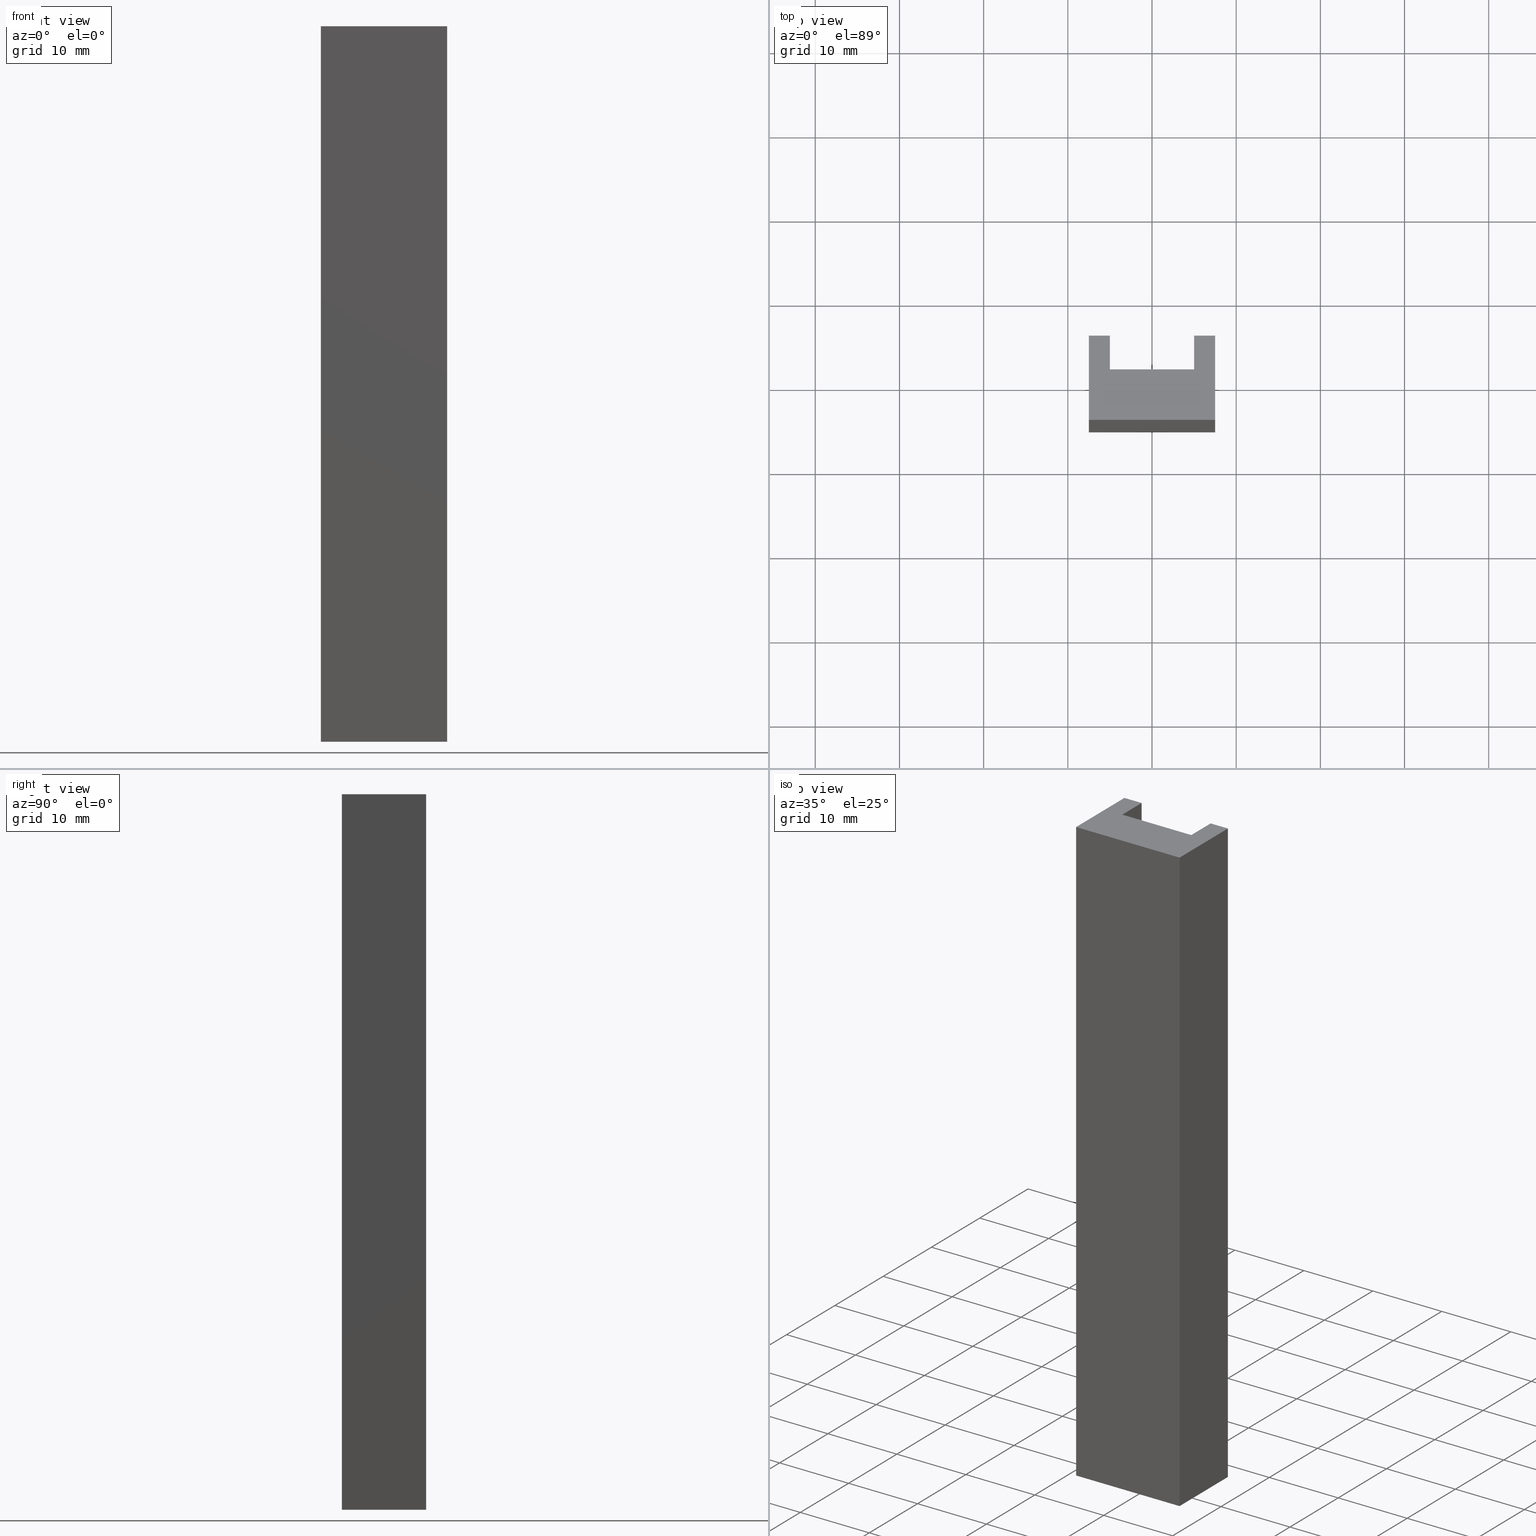
[diagram: canonical four-view strip — front | top / right | iso, engineering-drawing reading convention]
A machine part, canonical four-view strip (front | top / right | iso — engineering-drawing reading convention). The complete STEP part file that produces these views, byte-faithful:
ISO-10303-21;
HEADER;
/* Generated by software containing ST-Developer
 * from STEP Tools, Inc. (www.steptools.com) 
 */

FILE_DESCRIPTION(
/* description */ (''),
/* implementation_level */ '2;1');

FILE_NAME(
/* name */ 'E_3_01_10_17_00_WKZ-0214.stp',
/* time_stamp */ '2025-11-24T13:09:19+01:00',
/* author */ ('d.fischer'),
/* organization */ (''),
/* preprocessor_version */ 'ST-DEVELOPER v20',
/* originating_system */ 'Autodesk Inventor 2025',
/* authorisation */ '');

FILE_SCHEMA (('AUTOMOTIVE_DESIGN { 1 0 10303 214 3 1 1 }'));
ENDSEC;

DATA;
#10=MECHANICAL_DESIGN_GEOMETRIC_PRESENTATION_REPRESENTATION('',(#14,#15),
#325);
#11=SHAPE_REPRESENTATION_RELATIONSHIP('SRR','None',#332,#12);
#12=ADVANCED_BREP_SHAPE_REPRESENTATION('',(#13),#324);
#13=MANIFOLD_SOLID_BREP('Volumenk\X\F6rper1',#192);
#14=STYLED_ITEM('',(#342),#190);
#15=STYLED_ITEM('',(#341),#13);
#16=FACE_OUTER_BOUND('',#26,.T.);
#17=FACE_OUTER_BOUND('',#27,.T.);
#18=FACE_OUTER_BOUND('',#28,.T.);
#19=FACE_OUTER_BOUND('',#29,.T.);
#20=FACE_OUTER_BOUND('',#30,.T.);
#21=FACE_OUTER_BOUND('',#31,.T.);
#22=FACE_OUTER_BOUND('',#32,.T.);
#23=FACE_OUTER_BOUND('',#33,.T.);
#24=FACE_OUTER_BOUND('',#34,.T.);
#25=FACE_OUTER_BOUND('',#35,.T.);
#26=EDGE_LOOP('',(#124,#125,#126,#127,#128,#129,#130,#131));
#27=EDGE_LOOP('',(#132,#133,#134,#135));
#28=EDGE_LOOP('',(#136,#137,#138,#139));
#29=EDGE_LOOP('',(#140,#141,#142,#143));
#30=EDGE_LOOP('',(#144,#145,#146,#147));
#31=EDGE_LOOP('',(#148,#149,#150,#151));
#32=EDGE_LOOP('',(#152,#153,#154,#155));
#33=EDGE_LOOP('',(#156,#157,#158,#159));
#34=EDGE_LOOP('',(#160,#161,#162,#163));
#35=EDGE_LOOP('',(#164,#165,#166,#167,#168,#169,#170,#171));
#36=LINE('',#275,#60);
#37=LINE('',#277,#61);
#38=LINE('',#279,#62);
#39=LINE('',#281,#63);
#40=LINE('',#283,#64);
#41=LINE('',#285,#65);
#42=LINE('',#287,#66);
#43=LINE('',#288,#67);
#44=LINE('',#292,#68);
#45=LINE('',#293,#69);
#46=LINE('',#294,#70);
#47=LINE('',#297,#71);
#48=LINE('',#298,#72);
#49=LINE('',#301,#73);
#50=LINE('',#302,#74);
#51=LINE('',#305,#75);
#52=LINE('',#306,#76);
#53=LINE('',#309,#77);
#54=LINE('',#310,#78);
#55=LINE('',#313,#79);
#56=LINE('',#314,#80);
#57=LINE('',#317,#81);
#58=LINE('',#318,#82);
#59=LINE('',#320,#83);
#60=VECTOR('',#229,10.);
#61=VECTOR('',#230,10.);
#62=VECTOR('',#231,10.);
#63=VECTOR('',#232,10.);
#64=VECTOR('',#233,10.);
#65=VECTOR('',#234,10.);
#66=VECTOR('',#235,10.);
#67=VECTOR('',#236,10.);
#68=VECTOR('',#239,10.);
#69=VECTOR('',#240,10.);
#70=VECTOR('',#241,10.);
#71=VECTOR('',#244,10.);
#72=VECTOR('',#245,10.);
#73=VECTOR('',#248,10.);
#74=VECTOR('',#249,10.);
#75=VECTOR('',#252,10.);
#76=VECTOR('',#253,10.);
#77=VECTOR('',#256,10.);
#78=VECTOR('',#257,10.);
#79=VECTOR('',#260,10.);
#80=VECTOR('',#261,10.);
#81=VECTOR('',#264,10.);
#82=VECTOR('',#265,10.);
#83=VECTOR('',#268,10.);
#84=VERTEX_POINT('',#273);
#85=VERTEX_POINT('',#274);
#86=VERTEX_POINT('',#276);
#87=VERTEX_POINT('',#278);
#88=VERTEX_POINT('',#280);
#89=VERTEX_POINT('',#282);
#90=VERTEX_POINT('',#284);
#91=VERTEX_POINT('',#286);
#92=VERTEX_POINT('',#290);
#93=VERTEX_POINT('',#291);
#94=VERTEX_POINT('',#296);
#95=VERTEX_POINT('',#300);
#96=VERTEX_POINT('',#304);
#97=VERTEX_POINT('',#308);
#98=VERTEX_POINT('',#312);
#99=VERTEX_POINT('',#316);
#100=EDGE_CURVE('',#84,#85,#36,.T.);
#101=EDGE_CURVE('',#86,#84,#37,.T.);
#102=EDGE_CURVE('',#87,#86,#38,.T.);
#103=EDGE_CURVE('',#88,#87,#39,.T.);
#104=EDGE_CURVE('',#89,#88,#40,.T.);
#105=EDGE_CURVE('',#90,#89,#41,.T.);
#106=EDGE_CURVE('',#91,#90,#42,.T.);
#107=EDGE_CURVE('',#85,#91,#43,.T.);
#108=EDGE_CURVE('',#92,#93,#44,.T.);
#109=EDGE_CURVE('',#87,#93,#45,.T.);
#110=EDGE_CURVE('',#92,#86,#46,.T.);
#111=EDGE_CURVE('',#93,#94,#47,.T.);
#112=EDGE_CURVE('',#88,#94,#48,.T.);
#113=EDGE_CURVE('',#94,#95,#49,.T.);
#114=EDGE_CURVE('',#89,#95,#50,.T.);
#115=EDGE_CURVE('',#95,#96,#51,.T.);
#116=EDGE_CURVE('',#90,#96,#52,.T.);
#117=EDGE_CURVE('',#96,#97,#53,.T.);
#118=EDGE_CURVE('',#91,#97,#54,.T.);
#119=EDGE_CURVE('',#97,#98,#55,.T.);
#120=EDGE_CURVE('',#85,#98,#56,.T.);
#121=EDGE_CURVE('',#98,#99,#57,.T.);
#122=EDGE_CURVE('',#84,#99,#58,.T.);
#123=EDGE_CURVE('',#99,#92,#59,.T.);
#124=ORIENTED_EDGE('',*,*,#100,.F.);
#125=ORIENTED_EDGE('',*,*,#101,.F.);
#126=ORIENTED_EDGE('',*,*,#102,.F.);
#127=ORIENTED_EDGE('',*,*,#103,.F.);
#128=ORIENTED_EDGE('',*,*,#104,.F.);
#129=ORIENTED_EDGE('',*,*,#105,.F.);
#130=ORIENTED_EDGE('',*,*,#106,.F.);
#131=ORIENTED_EDGE('',*,*,#107,.F.);
#132=ORIENTED_EDGE('',*,*,#108,.T.);
#133=ORIENTED_EDGE('',*,*,#109,.F.);
#134=ORIENTED_EDGE('',*,*,#102,.T.);
#135=ORIENTED_EDGE('',*,*,#110,.F.);
#136=ORIENTED_EDGE('',*,*,#111,.T.);
#137=ORIENTED_EDGE('',*,*,#112,.F.);
#138=ORIENTED_EDGE('',*,*,#103,.T.);
#139=ORIENTED_EDGE('',*,*,#109,.T.);
#140=ORIENTED_EDGE('',*,*,#113,.T.);
#141=ORIENTED_EDGE('',*,*,#114,.F.);
#142=ORIENTED_EDGE('',*,*,#104,.T.);
#143=ORIENTED_EDGE('',*,*,#112,.T.);
#144=ORIENTED_EDGE('',*,*,#115,.T.);
#145=ORIENTED_EDGE('',*,*,#116,.F.);
#146=ORIENTED_EDGE('',*,*,#105,.T.);
#147=ORIENTED_EDGE('',*,*,#114,.T.);
#148=ORIENTED_EDGE('',*,*,#117,.T.);
#149=ORIENTED_EDGE('',*,*,#118,.F.);
#150=ORIENTED_EDGE('',*,*,#106,.T.);
#151=ORIENTED_EDGE('',*,*,#116,.T.);
#152=ORIENTED_EDGE('',*,*,#119,.T.);
#153=ORIENTED_EDGE('',*,*,#120,.F.);
#154=ORIENTED_EDGE('',*,*,#107,.T.);
#155=ORIENTED_EDGE('',*,*,#118,.T.);
#156=ORIENTED_EDGE('',*,*,#121,.T.);
#157=ORIENTED_EDGE('',*,*,#122,.F.);
#158=ORIENTED_EDGE('',*,*,#100,.T.);
#159=ORIENTED_EDGE('',*,*,#120,.T.);
#160=ORIENTED_EDGE('',*,*,#123,.T.);
#161=ORIENTED_EDGE('',*,*,#110,.T.);
#162=ORIENTED_EDGE('',*,*,#101,.T.);
#163=ORIENTED_EDGE('',*,*,#122,.T.);
#164=ORIENTED_EDGE('',*,*,#108,.F.);
#165=ORIENTED_EDGE('',*,*,#123,.F.);
#166=ORIENTED_EDGE('',*,*,#121,.F.);
#167=ORIENTED_EDGE('',*,*,#119,.F.);
#168=ORIENTED_EDGE('',*,*,#117,.F.);
#169=ORIENTED_EDGE('',*,*,#115,.F.);
#170=ORIENTED_EDGE('',*,*,#113,.F.);
#171=ORIENTED_EDGE('',*,*,#111,.F.);
#172=PLANE('',#215);
#173=PLANE('',#216);
#174=PLANE('',#217);
#175=PLANE('',#218);
#176=PLANE('',#219);
#177=PLANE('',#220);
#178=PLANE('',#221);
#179=PLANE('',#222);
#180=PLANE('',#223);
#181=PLANE('',#224);
#182=ADVANCED_FACE('',(#16),#172,.F.);
#183=ADVANCED_FACE('',(#17),#173,.T.);
#184=ADVANCED_FACE('',(#18),#174,.T.);
#185=ADVANCED_FACE('',(#19),#175,.T.);
#186=ADVANCED_FACE('',(#20),#176,.T.);
#187=ADVANCED_FACE('',(#21),#177,.T.);
#188=ADVANCED_FACE('',(#22),#178,.T.);
#189=ADVANCED_FACE('',(#23),#179,.T.);
#190=ADVANCED_FACE('',(#24),#180,.T.);
#191=ADVANCED_FACE('',(#25),#181,.T.);
#192=CLOSED_SHELL('',(#182,#183,#184,#185,#186,#187,#188,#189,#190,#191));
#193=DERIVED_UNIT_ELEMENT(#196,1.);
#194=DERIVED_UNIT_ELEMENT(#327,-3.);
#195=DIMENSIONAL_EXPONENTS(0.,1.,0.,0.,0.,0.,0.);
#196=(
CONVERSION_BASED_UNIT('gram',#198)
MASS_UNIT()
NAMED_UNIT(#195)
);
#197=(
MASS_UNIT()
NAMED_UNIT(*)
SI_UNIT(.KILO.,.GRAM.)
);
#198=MASS_MEASURE_WITH_UNIT(MASS_MEASURE(0.001),#197);
#199=DERIVED_UNIT((#193,#194));
#200=MEASURE_REPRESENTATION_ITEM('density measure',
POSITIVE_RATIO_MEASURE(8.03),#199);
#201=PROPERTY_DEFINITION_REPRESENTATION(#206,#203);
#202=PROPERTY_DEFINITION_REPRESENTATION(#207,#204);
#203=REPRESENTATION('material name',(#205),#324);
#204=REPRESENTATION('density',(#200),#324);
#205=DESCRIPTIVE_REPRESENTATION_ITEM('1.4301','1.4301');
#206=PROPERTY_DEFINITION('material property','material name',#334);
#207=PROPERTY_DEFINITION('material property','density of part',#334);
#208=DATE_TIME_ROLE('creation_date');
#209=APPLIED_DATE_AND_TIME_ASSIGNMENT(#210,#208,(#334));
#210=DATE_AND_TIME(#211,#212);
#211=CALENDAR_DATE(2011,17,10);
#212=LOCAL_TIME(0,0,0.,#213);
#213=COORDINATED_UNIVERSAL_TIME_OFFSET(0,0,.BEHIND.);
#214=AXIS2_PLACEMENT_3D('',#271,#225,#226);
#215=AXIS2_PLACEMENT_3D('',#272,#227,#228);
#216=AXIS2_PLACEMENT_3D('',#289,#237,#238);
#217=AXIS2_PLACEMENT_3D('',#295,#242,#243);
#218=AXIS2_PLACEMENT_3D('',#299,#246,#247);
#219=AXIS2_PLACEMENT_3D('',#303,#250,#251);
#220=AXIS2_PLACEMENT_3D('',#307,#254,#255);
#221=AXIS2_PLACEMENT_3D('',#311,#258,#259);
#222=AXIS2_PLACEMENT_3D('',#315,#262,#263);
#223=AXIS2_PLACEMENT_3D('',#319,#266,#267);
#224=AXIS2_PLACEMENT_3D('',#321,#269,#270);
#225=DIRECTION('axis',(0.,0.,1.));
#226=DIRECTION('refdir',(1.,0.,0.));
#227=DIRECTION('center_axis',(0.,0.,1.));
#228=DIRECTION('ref_axis',(1.,0.,0.));
#229=DIRECTION('',(0.,1.,0.));
#230=DIRECTION('',(1.,0.,0.));
#231=DIRECTION('',(0.,-1.,0.));
#232=DIRECTION('',(-1.,-4.44089209850063E-16,0.));
#233=DIRECTION('',(-5.55111512312578E-16,1.,0.));
#234=DIRECTION('',(-1.,0.,0.));
#235=DIRECTION('',(-5.55111512312578E-16,-1.,0.));
#236=DIRECTION('',(-1.,4.44089209850063E-16,0.));
#237=DIRECTION('center_axis',(-1.,0.,0.));
#238=DIRECTION('ref_axis',(0.,0.,1.));
#239=DIRECTION('',(0.,1.,0.));
#240=DIRECTION('',(0.,0.,1.));
#241=DIRECTION('',(0.,0.,-1.));
#242=DIRECTION('center_axis',(-4.44089209850063E-16,1.,0.));
#243=DIRECTION('ref_axis',(0.,0.,1.));
#244=DIRECTION('',(1.,4.44089209850063E-16,0.));
#245=DIRECTION('',(0.,0.,1.));
#246=DIRECTION('center_axis',(1.,5.55111512312578E-16,0.));
#247=DIRECTION('ref_axis',(0.,0.,-1.));
#248=DIRECTION('',(5.55111512312578E-16,-1.,0.));
#249=DIRECTION('',(0.,0.,1.));
#250=DIRECTION('center_axis',(0.,1.,0.));
#251=DIRECTION('ref_axis',(0.,0.,1.));
#252=DIRECTION('',(1.,0.,0.));
#253=DIRECTION('',(0.,0.,1.));
#254=DIRECTION('center_axis',(-1.,5.55111512312578E-16,0.));
#255=DIRECTION('ref_axis',(0.,0.,1.));
#256=DIRECTION('',(5.55111512312578E-16,1.,0.));
#257=DIRECTION('',(0.,0.,1.));
#258=DIRECTION('center_axis',(4.44089209850063E-16,1.,0.));
#259=DIRECTION('ref_axis',(0.,0.,1.));
#260=DIRECTION('',(1.,-4.44089209850063E-16,0.));
#261=DIRECTION('',(0.,0.,1.));
#262=DIRECTION('center_axis',(1.,0.,0.));
#263=DIRECTION('ref_axis',(0.,0.,-1.));
#264=DIRECTION('',(0.,-1.,0.));
#265=DIRECTION('',(0.,0.,1.));
#266=DIRECTION('center_axis',(0.,-1.,0.));
#267=DIRECTION('ref_axis',(0.,0.,-1.));
#268=DIRECTION('',(-1.,0.,0.));
#269=DIRECTION('center_axis',(0.,0.,1.));
#270=DIRECTION('ref_axis',(1.,0.,0.));
#271=CARTESIAN_POINT('',(0.,0.,0.));
#272=CARTESIAN_POINT('Origin',(0.,-0.275862068965517,-42.5));
#273=CARTESIAN_POINT('',(7.5,-5.,-42.5));
#274=CARTESIAN_POINT('',(7.5,5.,-42.5));
#275=CARTESIAN_POINT('',(7.5,-5.,-42.5));
#276=CARTESIAN_POINT('',(-7.5,-5.,-42.5));
#277=CARTESIAN_POINT('',(-7.5,-5.,-42.5));
#278=CARTESIAN_POINT('',(-7.5,5.,-42.5));
#279=CARTESIAN_POINT('',(-7.5,5.,-42.5));
#280=CARTESIAN_POINT('',(-5.,5.,-42.5));
#281=CARTESIAN_POINT('',(-5.,5.,-42.5));
#282=CARTESIAN_POINT('',(-5.,1.,-42.5));
#283=CARTESIAN_POINT('',(-5.,1.,-42.5));
#284=CARTESIAN_POINT('',(5.,1.,-42.5));
#285=CARTESIAN_POINT('',(5.,1.,-42.5));
#286=CARTESIAN_POINT('',(5.,5.,-42.5));
#287=CARTESIAN_POINT('',(5.,5.,-42.5));
#288=CARTESIAN_POINT('',(7.5,5.,-42.5));
#289=CARTESIAN_POINT('Origin',(-7.5,-5.,0.));
#290=CARTESIAN_POINT('',(-7.5,-5.,42.5));
#291=CARTESIAN_POINT('',(-7.5,5.,42.5));
#292=CARTESIAN_POINT('',(-7.5,5.,42.5));
#293=CARTESIAN_POINT('',(-7.5,5.,0.));
#294=CARTESIAN_POINT('',(-7.5,-5.,0.));
#295=CARTESIAN_POINT('Origin',(-7.5,5.,0.));
#296=CARTESIAN_POINT('',(-5.,5.,42.5));
#297=CARTESIAN_POINT('',(-5.,5.,42.5));
#298=CARTESIAN_POINT('',(-5.,5.,0.));
#299=CARTESIAN_POINT('Origin',(-5.,5.,0.));
#300=CARTESIAN_POINT('',(-5.,1.,42.5));
#301=CARTESIAN_POINT('',(-5.,1.,42.5));
#302=CARTESIAN_POINT('',(-5.,1.,0.));
#303=CARTESIAN_POINT('Origin',(-5.,1.,0.));
#304=CARTESIAN_POINT('',(5.,1.,42.5));
#305=CARTESIAN_POINT('',(5.,1.,42.5));
#306=CARTESIAN_POINT('',(5.,1.,0.));
#307=CARTESIAN_POINT('Origin',(5.,1.,0.));
#308=CARTESIAN_POINT('',(5.,5.,42.5));
#309=CARTESIAN_POINT('',(5.,5.,42.5));
#310=CARTESIAN_POINT('',(5.,5.,0.));
#311=CARTESIAN_POINT('Origin',(5.,5.,0.));
#312=CARTESIAN_POINT('',(7.5,5.,42.5));
#313=CARTESIAN_POINT('',(7.5,5.,42.5));
#314=CARTESIAN_POINT('',(7.5,5.,0.));
#315=CARTESIAN_POINT('Origin',(7.5,5.,0.));
#316=CARTESIAN_POINT('',(7.5,-5.,42.5));
#317=CARTESIAN_POINT('',(7.5,-5.,42.5));
#318=CARTESIAN_POINT('',(7.5,-5.,0.));
#319=CARTESIAN_POINT('Origin',(7.5,-5.,0.));
#320=CARTESIAN_POINT('',(-7.5,-5.,42.5));
#321=CARTESIAN_POINT('Origin',(0.,-0.275862068965517,42.5));
#322=UNCERTAINTY_MEASURE_WITH_UNIT(LENGTH_MEASURE(0.01),#326,
'DISTANCE_ACCURACY_VALUE',
'Maximum model space distance between geometric entities at asserted c
onnectivities');
#323=UNCERTAINTY_MEASURE_WITH_UNIT(LENGTH_MEASURE(0.01),#326,
'DISTANCE_ACCURACY_VALUE',
'Maximum model space distance between geometric entities at asserted c
onnectivities');
#324=(
GEOMETRIC_REPRESENTATION_CONTEXT(3)
GLOBAL_UNCERTAINTY_ASSIGNED_CONTEXT((#322))
GLOBAL_UNIT_ASSIGNED_CONTEXT((#326,#328,#329))
REPRESENTATION_CONTEXT('','3D')
);
#325=(
GEOMETRIC_REPRESENTATION_CONTEXT(3)
GLOBAL_UNCERTAINTY_ASSIGNED_CONTEXT((#323))
GLOBAL_UNIT_ASSIGNED_CONTEXT((#326,#328,#329))
REPRESENTATION_CONTEXT('','3D')
);
#326=(
LENGTH_UNIT()
NAMED_UNIT(*)
SI_UNIT(.MILLI.,.METRE.)
);
#327=(
LENGTH_UNIT()
NAMED_UNIT(*)
SI_UNIT(.CENTI.,.METRE.)
);
#328=(
NAMED_UNIT(*)
PLANE_ANGLE_UNIT()
SI_UNIT($,.RADIAN.)
);
#329=(
NAMED_UNIT(*)
SI_UNIT($,.STERADIAN.)
SOLID_ANGLE_UNIT()
);
#330=SHAPE_DEFINITION_REPRESENTATION(#331,#332);
#331=PRODUCT_DEFINITION_SHAPE('',$,#334);
#332=SHAPE_REPRESENTATION('',(#214),#324);
#333=PRODUCT_DEFINITION_CONTEXT('part definition',#338,'design');
#334=PRODUCT_DEFINITION('WKZ-0214','E_3_01_10_17_00_WKZ-0214',#335,#333);
#335=PRODUCT_DEFINITION_FORMATION('',$,#340);
#336=PRODUCT_RELATED_PRODUCT_CATEGORY('E_3_01_10_17_00_WKZ-0214',
'E_3_01_10_17_00_WKZ-0214',(#340));
#337=APPLICATION_PROTOCOL_DEFINITION('international standard',
'automotive_design',2009,#338);
#338=APPLICATION_CONTEXT(
'Core Data for Automotive Mechanical Design Process');
#339=PRODUCT_CONTEXT('part definition',#338,'mechanical');
#340=PRODUCT('WKZ-0214','E_3_01_10_17_00_WKZ-0214',$,(#339));
#341=PRESENTATION_STYLE_ASSIGNMENT((#343));
#342=PRESENTATION_STYLE_ASSIGNMENT((#344));
#343=SURFACE_STYLE_USAGE(.BOTH.,#347);
#344=SURFACE_STYLE_USAGE(.BOTH.,#348);
#345=SURFACE_STYLE_RENDERING_WITH_PROPERTIES($,#355,(#346));
#346=SURFACE_STYLE_TRANSPARENT(0.);
#347=SURFACE_SIDE_STYLE('',(#349,#345));
#348=SURFACE_SIDE_STYLE('',(#350));
#349=SURFACE_STYLE_FILL_AREA(#351);
#350=SURFACE_STYLE_FILL_AREA(#352);
#351=FILL_AREA_STYLE('',(#353));
#352=FILL_AREA_STYLE('',(#354));
#353=FILL_AREA_STYLE_COLOUR('',#355);
#354=FILL_AREA_STYLE_COLOUR('',#356);
#355=COLOUR_RGB('',0.92156862745098,0.92156862745098,0.92156862745098);
#356=COLOUR_RGB('',0.16078431372549,0.16078431372549,0.16078431372549);
ENDSEC;
END-ISO-10303-21;
